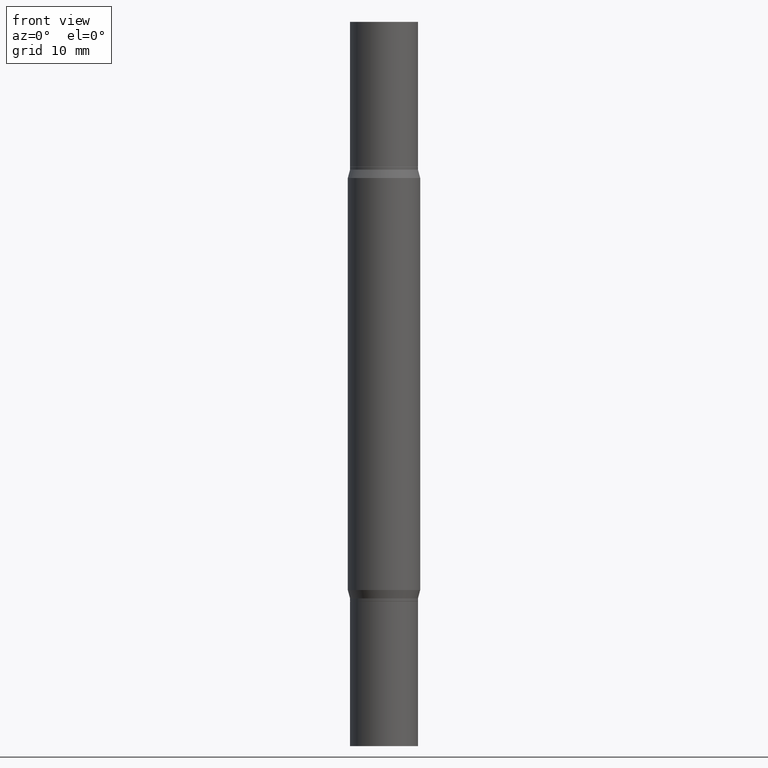
[diagram: clean part render]
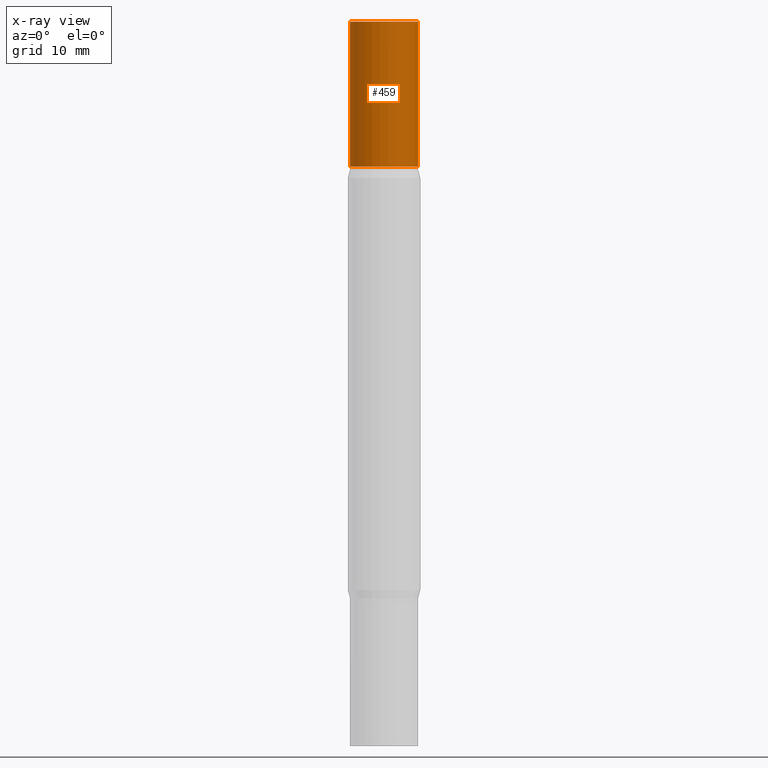
[diagram: x-ray — body ghosted, one internal face saturated and labeled with its STEP entity id]
A machine part, front view, then the same camera in x-ray: the body is ghosted and one INTERNAL B-rep face — a face not visible from any outside direction — is saturated and labeled: STEP entity #459.
In plain terms, the highlighted cylindrical surface (edge-blend (fillet) strip) has radius 2.9769 mm, axis along (-0, -0, -1).
Its self-contained STEP definition (entity closure, byte-faithful):
#59 = AXIS2_PLACEMENT_3D ( 'NONE', #968, #814, #294 ) ;
#174 = CYLINDRICAL_SURFACE ( 'NONE', #727, 0.1171999999999999986 ) ;
#269 = CARTESIAN_POINT ( 'NONE',  ( 0.1171999999999999986, -8.179985306773559567E-16, 5.463695987328526437E-16 ) ) ;
#288 = EDGE_CURVE ( 'NONE', #802, #376, #587, .T. ) ;
#294 = DIRECTION ( 'NONE',  ( 1.000000000000000000, -6.982962677686265922E-15, 0.000000000000000000 ) ) ;
#317 = CIRCLE ( 'NONE', #450, 0.1171999999999999986 ) ;
#363 = ORIENTED_EDGE ( 'NONE', *, *, #438, .F. ) ;
#369 = CARTESIAN_POINT ( 'NONE',  ( -0.1171999999999999986, -7.925057676916510614E-15, -2.499999999999999556 ) ) ;
#376 = VERTEX_POINT ( 'NONE', #529 ) ;
#403 = DIRECTION ( 'NONE',  ( 1.000000000000000000, -6.982962677686269866E-15, 0.000000000000000000 ) ) ;
#430 = DIRECTION ( 'NONE',  ( -2.445468806185136597E-29, -3.491805094961124077E-15, -1.000000000000000000 ) ) ;
#438 = EDGE_CURVE ( 'NONE', #798, #802, #317, .T. ) ;
#450 = AXIS2_PLACEMENT_3D ( 'NONE', #611, #911, #898 ) ;
#459 = ADVANCED_FACE ( 'NONE', ( #951 ), #174, .T. ) ;
#524 = EDGE_LOOP ( 'NONE', ( #363, #572, #697, #595 ) ) ;
#529 = CARTESIAN_POINT ( 'NONE',  ( 0.1171999999999999986, -2.563901078157915826E-15, -0.4999999999999993339 ) ) ;
#572 = ORIENTED_EDGE ( 'NONE', *, *, #957, .T. ) ;
#585 = CARTESIAN_POINT ( 'NONE',  ( -0.1171999999999999986, -6.849621325398194571E-17, 5.463695987328557991E-16 ) ) ;
#587 = LINE ( 'NONE', #816, #709 ) ;
#595 = ORIENTED_EDGE ( 'NONE', *, *, #288, .F. ) ;
#611 = CARTESIAN_POINT ( 'NONE',  ( 6.113672015462842613E-29, 4.046951474745467748E-19, 5.463695987328526437E-16 ) ) ;
#661 = DIRECTION ( 'NONE',  ( -2.445468806185136877E-29, -3.491805094961123683E-15, -1.000000000000000000 ) ) ;
#676 = VECTOR ( 'NONE', #741, 39.37007874015748143 ) ;
#697 = ORIENTED_EDGE ( 'NONE', *, *, #954, .T. ) ;
#709 = VECTOR ( 'NONE', #661, 39.37007874015748143 ) ;
#718 = CARTESIAN_POINT ( 'NONE',  ( 0.000000000000000000, -8.729108042255335103E-15, -2.499999999999999556 ) ) ;
#727 = AXIS2_PLACEMENT_3D ( 'NONE', #718, #430, #403 ) ;
#741 = DIRECTION ( 'NONE',  ( -2.445468806185136877E-29, -3.491805094961123683E-15, -1.000000000000000000 ) ) ;
#746 = LINE ( 'NONE', #369, #676 ) ;
#759 = VERTEX_POINT ( 'NONE', #799 ) ;
#798 = VERTEX_POINT ( 'NONE', #585 ) ;
#799 = CARTESIAN_POINT ( 'NONE',  ( -0.1171999999999999986, -6.849621325398205664E-17, -0.4999999999999993339 ) ) ;
#802 = VERTEX_POINT ( 'NONE', #269 ) ;
#814 = DIRECTION ( 'NONE',  ( 2.445468806185136597E-29, 3.491805094961124077E-15, 1.000000000000000000 ) ) ;
#816 = CARTESIAN_POINT ( 'NONE',  ( 0.1171999999999999986, -9.547511268080165952E-15, -2.499999999999999556 ) ) ;
#871 = CIRCLE ( 'NONE', #59, 0.1171999999999999986 ) ;
#898 = DIRECTION ( 'NONE',  ( 1.000000000000000000, -6.982962677686266711E-15, 0.000000000000000000 ) ) ;
#911 = DIRECTION ( 'NONE',  ( 2.445468806185136597E-29, 3.491805094961124077E-15, 1.000000000000000000 ) ) ;
#951 = FACE_OUTER_BOUND ( 'NONE', #524, .T. ) ;
#954 = EDGE_CURVE ( 'NONE', #759, #376, #871, .T. ) ;
#957 = EDGE_CURVE ( 'NONE', #798, #759, #746, .T. ) ;
#968 = CARTESIAN_POINT ( 'NONE',  ( 4.890937612370273754E-29, -1.745497852333085568E-15, -0.4999999999999993339 ) ) ;